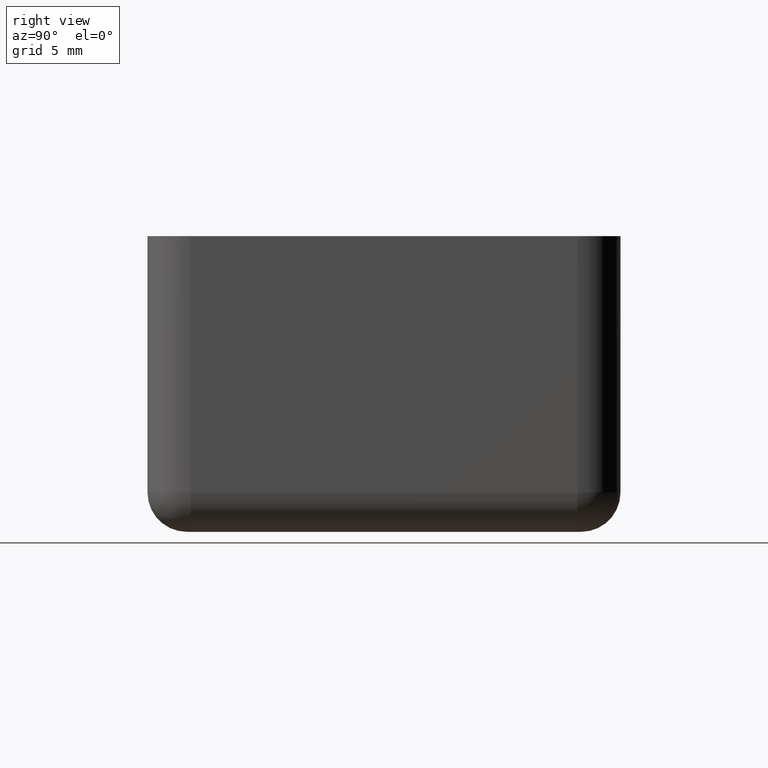
[diagram: clean part render]
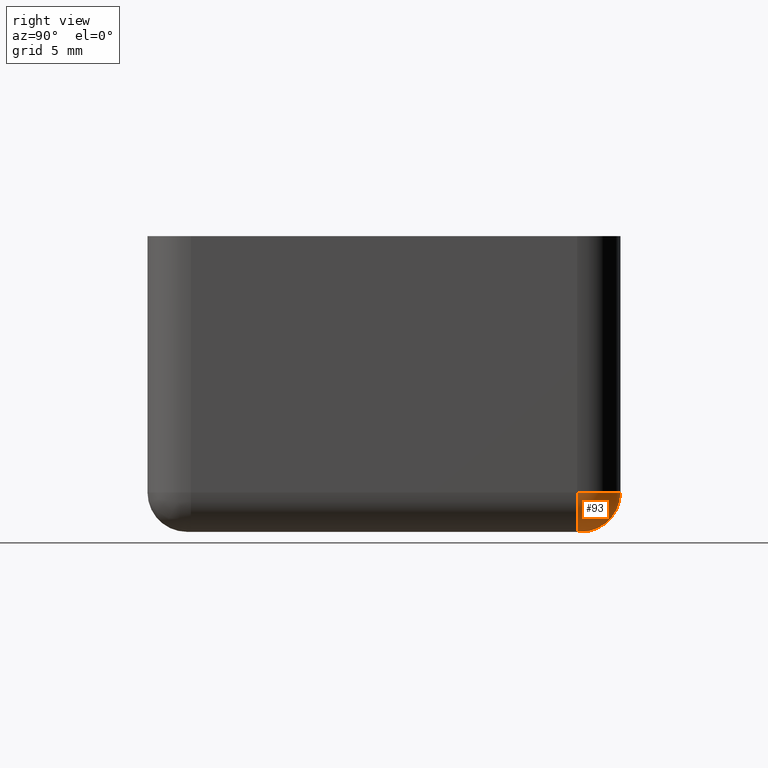
[diagram: same view with one face highlighted and labeled with its STEP entity id]
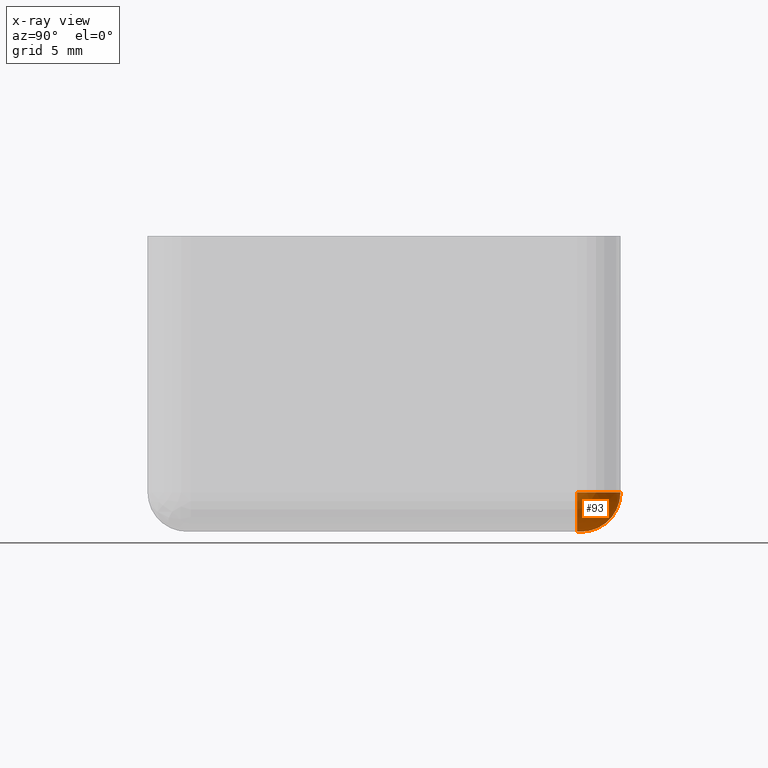
[diagram: x-ray of the same camera — body ghosted, the highlighted face saturated]
A machine part, right view. The second image highlights one B-rep face of the part: STEP entity #93.
The next image is the same camera in x-ray: the body ghosted, the highlighted face saturated — about 0% of this face is hidden behind the body in this view.
In plain terms, the highlighted face is a freeform B-spline surface patch.
Its self-contained STEP definition (entity closure, byte-faithful):
#93 = ADVANCED_FACE( '', ( #152 ), #153, .T. );
#152 = FACE_OUTER_BOUND( '', #231, .T. );
#153 = ( B_SPLINE_SURFACE( 3, 3, ( ( #233, #234, #235, #236 ), ( #237, #238, #239, #240 ), ( #241, #242, #243, #244 ), ( #245, #246, #247, #248 ) ), .UNSPECIFIED., .F., .F., .F. )B_SPLINE_SURFACE_WITH_KNOTS( ( 4, 4 ), ( 4, 4 ), ( 3.14159265358979, 4.71238898038469 ), ( -1.57079632679490, 0.000000000000000 ), .UNSPECIFIED. )RATIONAL_B_SPLINE_SURFACE( ( ( 1.00000000000000, 0.804737854124364, 0.804737854124364, 1.00000000000000 ), ( 0.804737854124365, 0.647603013860687, 0.647603013860687, 0.804737854124365 ), ( 0.804737854124365, 0.647603013860687, 0.647603013860687, 0.804737854124365 ), ( 1.00000000000000, 0.804737854124364, 0.804737854124364, 1.00000000000000 ) ) )BOUNDED_SURFACE(  )REPRESENTATION_ITEM( '' )GEOMETRIC_REPRESENTATION_ITEM(  )SURFACE(  ) );
#231 = EDGE_LOOP( '', ( #501, #502, #503, #504 ) );
#233 = CARTESIAN_POINT( '', ( 2.00000000000000, -0.200000000000004, -13.0000000000000 ) );
#234 = CARTESIAN_POINT( '', ( 2.00000000000000, 1.08873016277919, -13.0000000000000 ) );
#235 = CARTESIAN_POINT( '', ( 1.08873016277919, 2.00000000000000, -13.0000000000000 ) );
#236 = CARTESIAN_POINT( '', ( -0.199999999999999, 2.00000000000000, -13.0000000000000 ) );
#237 = CARTESIAN_POINT( '', ( 2.00000000000000, -0.200000000000004, -14.1715728752538 ) );
#238 = CARTESIAN_POINT( '', ( 2.00000000000000, 1.08873016277919, -14.1715728752538 ) );
#239 = CARTESIAN_POINT( '', ( 1.08873016277919, 2.00000000000000, -14.1715728752538 ) );
#240 = CARTESIAN_POINT( '', ( -0.199999999999999, 2.00000000000000, -14.1715728752538 ) );
#241 = CARTESIAN_POINT( '', ( 1.17157287525381, -0.200000000000002, -15.0000000000000 ) );
#242 = CARTESIAN_POINT( '', ( 1.17157287525381, 0.603448788540620, -15.0000000000000 ) );
#243 = CARTESIAN_POINT( '', ( 0.603448788540622, 1.17157287525381, -15.0000000000000 ) );
#244 = CARTESIAN_POINT( '', ( -0.200000000000000, 1.17157287525381, -15.0000000000000 ) );
#245 = CARTESIAN_POINT( '', ( -3.94486960458851E-016, -0.199999999999999, -15.0000000000000 ) );
#246 = CARTESIAN_POINT( '', ( -1.08687042729415E-016, -0.0828427124746182, -15.0000000000000 ) );
#247 = CARTESIAN_POINT( '', ( -0.0828427124746190, 9.27172486051283E-016, -15.0000000000000 ) );
#248 = CARTESIAN_POINT( '', ( -0.200000000000000, 9.58928032465665E-016, -15.0000000000000 ) );
#501 = ORIENTED_EDGE( '', *, *, #716, .T. );
#502 = ORIENTED_EDGE( '', *, *, #683, .F. );
#503 = ORIENTED_EDGE( '', *, *, #715, .F. );
#504 = ORIENTED_EDGE( '', *, *, #702, .F. );
#683 = EDGE_CURVE( '', #815, #818, #819, .T. );
#702 = EDGE_CURVE( '', #846, #847, #848, .F. );
#715 = EDGE_CURVE( '', #847, #815, #871, .T. );
#716 = EDGE_CURVE( '', #846, #818, #872, .T. );
#815 = VERTEX_POINT( '', #994 );
#818 = VERTEX_POINT( '', #999 );
#819 = CIRCLE( '', #1000, 2.20000000000000 );
#846 = VERTEX_POINT( '', #1041 );
#847 = VERTEX_POINT( '', #1042 );
#848 = CIRCLE( '', #1043, 0.200000000000000 );
#871 = CIRCLE( '', #1072, 2.00000000000000 );
#872 = CIRCLE( '', #1073, 2.00000000000000 );
#994 = CARTESIAN_POINT( '', ( 2.00000000000000, -0.200000000000003, -13.0000000000000 ) );
#999 = CARTESIAN_POINT( '', ( -0.200000000000000, 2.00000000000000, -13.0000000000000 ) );
#1000 = AXIS2_PLACEMENT_3D( '', #1183, #1184, #1185 );
#1041 = CARTESIAN_POINT( '', ( -0.200000000000000, 1.32553473405905E-015, -15.0000000000000 ) );
#1042 = CARTESIAN_POINT( '', ( -1.70002900645733E-017, -0.200000000000002, -15.0000000000000 ) );
#1043 = AXIS2_PLACEMENT_3D( '', #1212, #1213, #1214 );
#1072 = AXIS2_PLACEMENT_3D( '', #1239, #1240, #1241 );
#1073 = AXIS2_PLACEMENT_3D( '', #1242, #1243, #1244 );
#1183 = CARTESIAN_POINT( '', ( -0.200000000000000, -0.199999999999999, -13.0000000000000 ) );
#1184 = DIRECTION( '', ( 0.000000000000000, 0.000000000000000, 1.00000000000000 ) );
#1185 = DIRECTION( '', ( -1.00000000000000, 1.22460635382238E-016, 0.000000000000000 ) );
#1212 = CARTESIAN_POINT( '', ( -0.200000000000000, -0.199999999999999, -15.0000000000000 ) );
#1213 = DIRECTION( '', ( 0.000000000000000, 0.000000000000000, 1.00000000000000 ) );
#1214 = DIRECTION( '', ( -1.00000000000000, 1.22460635382238E-016, 0.000000000000000 ) );
#1239 = CARTESIAN_POINT( '', ( -1.70002900645733E-017, -0.200000000000002, -13.0000000000000 ) );
#1240 = DIRECTION( '', ( -1.90223271162582E-016, -1.00000000000000, 0.000000000000000 ) );
#1241 = DIRECTION( '', ( 1.00000000000000, -1.90223271162582E-016, 0.000000000000000 ) );
#1242 = CARTESIAN_POINT( '', ( -0.200000000000000, -1.71023134890036E-015, -13.0000000000000 ) );
#1243 = DIRECTION( '', ( 1.00000000000000, -1.22460635382238E-016, 0.000000000000000 ) );
#1244 = DIRECTION( '', ( 0.000000000000000, 0.000000000000000, 1.00000000000000 ) );